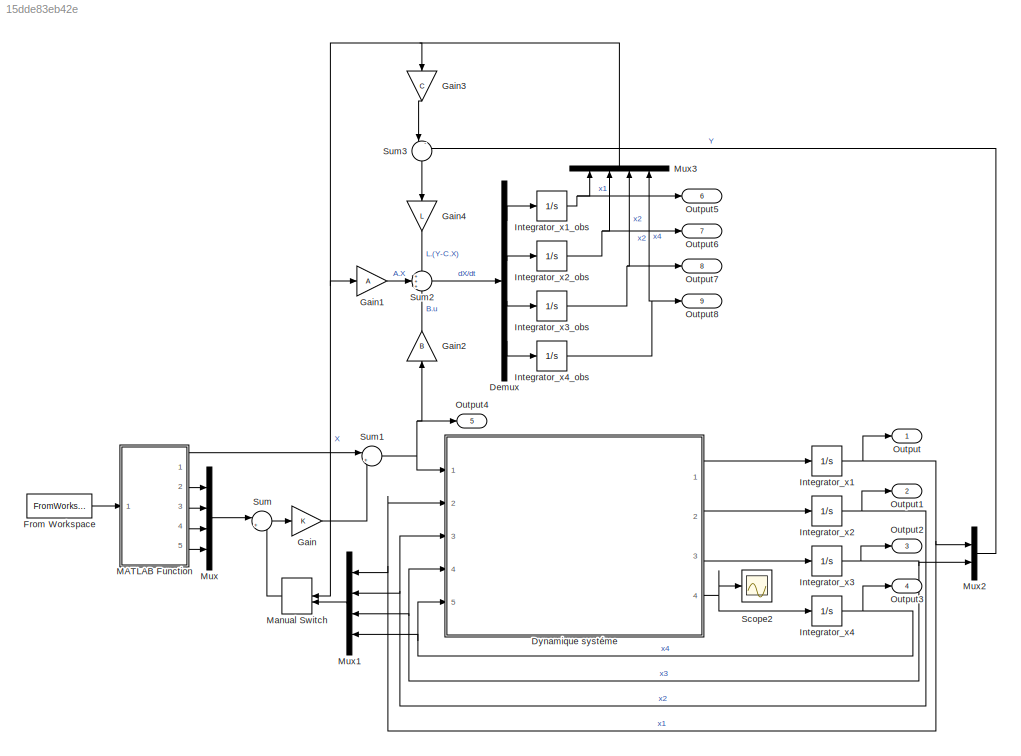
MODEL slx_15dde83eb42e
KIND model
CONFIG AbsTol = auto
CONFIG EnableMultiTasking = off
CONFIG FixedStep = auto
CONFIG MaxStep = auto
CONFIG MinStep = auto
CONFIG RelTol = 1e-3
CONFIG SampleTimeConstraint = Unconstrained
CONFIG SolverName = VariableStepAuto
CONFIG StartTime = 0.0
CONFIG StopTime = 10.0
BLOCK [Demux] Demux
  Ports = [1, 4]
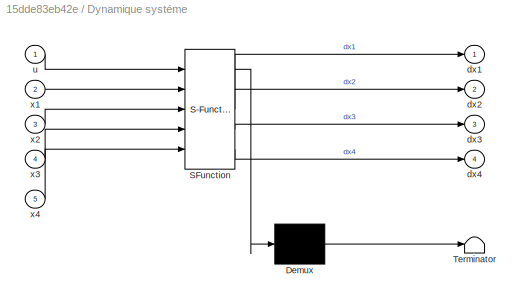
BLOCK [SubSystem] Dynamique systéme
  ErrorFcn = Stateflow.Translate.translate
  PermitHierarchicalResolution = ExplicitOnly
  Ports = [5, 4]
  RequestExecContextInheritance = off
  SFBlockType = MATLAB Function
  TreatAsAtomicUnit = on
BLOCK [Demux] Dynamique systéme/ Demux 
  Outputs = 1
  Ports = [1, 1]
BLOCK [S-Function] Dynamique systéme/ SFunction 
  EnableBusSupport = on
  FunctionName = sf_sfun
  PortCounts = [5 5]
  Ports = [5, 5]
  SFcnIsStateOwnerBlock = off
  SFunctionDeploymentMode = off
  Tag = Stateflow S-Function 2
BLOCK [Terminator] Dynamique systéme/ Terminator 
BLOCK [Outport] Dynamique systéme/dx1
BLOCK [Outport] Dynamique systéme/dx2
  Port = 2
BLOCK [Outport] Dynamique systéme/dx3
  Port = 3
BLOCK [Outport] Dynamique systéme/dx4
  Port = 4
BLOCK [Inport] Dynamique systéme/u
BLOCK [Inport] Dynamique systéme/x1
  Port = 2
BLOCK [Inport] Dynamique systéme/x2
  Port = 3
BLOCK [Inport] Dynamique systéme/x3
  Port = 4
BLOCK [Inport] Dynamique systéme/x4
  Port = 5
BLOCK [FromWorkspace] From Workspace
  OutDataTypeStr = double
  SampleTime = 0.01
  VariableName = Rref
BLOCK [Gain] Gain
  Gain = K
  Multiplication = Matrix(K*u)
BLOCK [Gain] Gain1
  Gain = A
  Multiplication = Matrix(K*u)
BLOCK [Gain] Gain2
  Gain = B
  Multiplication = Matrix(K*u)
  NameLocation = right
BLOCK [Gain] Gain3
  Gain = C
  Multiplication = Matrix(K*u)
  NameLocation = left
BLOCK [Gain] Gain4
  Gain = L
  Multiplication = Matrix(K*u)
  NameLocation = left
BLOCK [Integrator] Integrator_x1
  InitialCondition = 0.1
  Ports = [1, 1]
BLOCK [Integrator] Integrator_x1_obs
  Ports = [1, 1]
BLOCK [Integrator] Integrator_x2
  Ports = [1, 1]
BLOCK [Integrator] Integrator_x2_obs
  Ports = [1, 1]
BLOCK [Integrator] Integrator_x3
  Ports = [1, 1]
BLOCK [Integrator] Integrator_x3_obs
  Ports = [1, 1]
BLOCK [Integrator] Integrator_x4
  Ports = [1, 1]
BLOCK [Integrator] Integrator_x4_obs
  Ports = [1, 1]
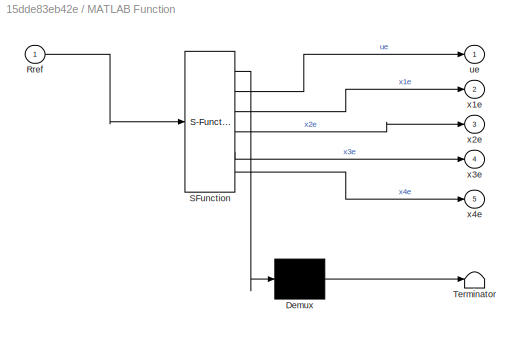
BLOCK [SubSystem] MATLAB Function
  ErrorFcn = Stateflow.Translate.translate
  PermitHierarchicalResolution = ExplicitOnly
  Ports = [1, 5]
  RequestExecContextInheritance = off
  SFBlockType = MATLAB Function
  TreatAsAtomicUnit = on
BLOCK [Demux] MATLAB Function/ Demux 
  Outputs = 1
  Ports = [1, 1]
BLOCK [S-Function] MATLAB Function/ SFunction 
  EnableBusSupport = on
  FunctionName = sf_sfun
  PortCounts = [1 6]
  Ports = [1, 6]
  SFcnIsStateOwnerBlock = off
  SFunctionDeploymentMode = off
  Tag = Stateflow S-Function 1
BLOCK [Terminator] MATLAB Function/ Terminator 
BLOCK [Inport] MATLAB Function/Rref
BLOCK [Outport] MATLAB Function/ue
BLOCK [Outport] MATLAB Function/x1e
  Port = 2
BLOCK [Outport] MATLAB Function/x2e
  Port = 3
BLOCK [Outport] MATLAB Function/x3e
  Port = 4
BLOCK [Outport] MATLAB Function/x4e
  Port = 5
BLOCK [ManualSwitch] Manual Switch
  CurrentSetting = 0
  NameLocation = top
BLOCK [Mux] Mux
  DisplayOption = bar
  Ports = [4, 1]
BLOCK [Mux] Mux1
  DisplayOption = bar
  NameLocation = top
  Ports = [4, 1]
BLOCK [Mux] Mux2
  DisplayOption = bar
  Inputs = 2
  Ports = [2, 1]
BLOCK [Mux] Mux3
  DisplayOption = bar
  NameLocation = right
  Ports = [4, 1]
BLOCK [Outport] Output
  IconDisplay = Signal name
BLOCK [Outport] Output1
  IconDisplay = Signal name
  Port = 2
BLOCK [Outport] Output2
  IconDisplay = Signal name
  Port = 3
BLOCK [Outport] Output3
  IconDisplay = Signal name
  Port = 4
BLOCK [Outport] Output4
  IconDisplay = Signal name
  Port = 5
  SignalName = U
BLOCK [Outport] Output5
  IconDisplay = Signal name
  Port = 6
  SignalName = x1_obs
BLOCK [Outport] Output6
  IconDisplay = Signal name
  Port = 7
  SignalName = x2_obs
BLOCK [Outport] Output7
  IconDisplay = Signal name
  Port = 8
  SignalName = x3_obs
BLOCK [Outport] Output8
  IconDisplay = Signal name
  Port = 9
  SignalName = x4_obs
BLOCK [Scope] Scope2
  Floating = off
  NumInputPorts = 1
  Ports = [1]
  ScopeSpecificationString = Simulink.scopes.TimeScopeBlockCfg('CurrentConfiguration', extmgr.ConfigurationSet(extmgr.Configuration('Core','General UI',true),extmgr.Configuration('Core','Source UI',true),extmgr.Configuration('Sources','WiredSimulink',true,'DataLoggingVariableName','ScopeData2'),extmgr.Configuration('Visuals','Time Domain',true,'SerializedDisplays',{struct('MinYLimReal','-34971641.0844','MaxYLimReal','51641224...<+1451ch>
BLOCK [Sum] Sum
  Inputs = |+-
  Ports = [2, 1]
BLOCK [Sum] Sum1
  Inputs = |++
  Ports = [2, 1]
BLOCK [Sum] Sum2
  Inputs = +++
  Ports = [3, 1]
BLOCK [Sum] Sum3
  Inputs = |-+
  NameLocation = left
  Ports = [2, 1]
LINE Demux:1 -> Integrator_x1_obs:1
LINE Demux:2 -> Integrator_x2_obs:1
LINE Demux:3 -> Integrator_x3_obs:1
LINE Demux:4 -> Integrator_x4_obs:1
LINE Dynamique systéme:1 -> Integrator_x1:1
LINE Dynamique systéme:2 -> Integrator_x2:1
LINE Dynamique systéme:3 -> Integrator_x3:1
NET Dynamique systéme:4 -> Integrator_x4:1, Scope2:1
LINE From Workspace:1 -> MATLAB Function:1
LINE Gain1:1 -> Sum2:2
LINE Gain2:1 -> Sum2:3
LINE Gain3:1 -> Sum3:1
LINE Gain4:1 -> Sum2:1
LINE Gain:1 -> Sum1:2
NET Integrator_x1:1 -> Dynamique systéme:2, Mux1:1, Mux2:1, Output:1
NET Integrator_x1_obs:1 -> Mux3:1, Output5:1
NET Integrator_x2:1 -> Dynamique systéme:3, Mux1:2, Output1:1
NET Integrator_x2_obs:1 -> Mux3:2, Output6:1
NET Integrator_x3:1 -> Dynamique systéme:4, Mux1:3, Mux2:2, Output2:1
NET Integrator_x3_obs:1 -> Mux3:3, Output7:1
NET Integrator_x4:1 -> Dynamique systéme:5, Mux1:4, Output3:1
NET Integrator_x4_obs:1 -> Mux3:4, Output8:1
LINE MATLAB Function:1 -> Sum1:1
LINE MATLAB Function:2 -> Mux:1
LINE MATLAB Function:3 -> Mux:2
LINE MATLAB Function:4 -> Mux:3
LINE MATLAB Function:5 -> Mux:4
LINE Manual Switch:1 -> Sum:2
LINE Mux1:1 -> Manual Switch:2
LINE Mux2:1 -> Sum3:2
NET Mux3:1 -> Gain1:1, Gain3:1, Manual Switch:1
LINE Mux:1 -> Sum:1
NET Sum1:1 -> Dynamique systéme:1, Gain2:1, Output4:1
LINE Sum2:1 -> Demux:1
LINE Sum3:1 -> Gain4:1
LINE Sum:1 -> Gain:1
note: NET lines group one-source signal fan-out (src -> all destinations, sorted); 1:1 wires keep LINE
CHART MATLAB Function states=1 transitions=1
  STATE_LABEL 'eML_blk_kernel()'
  STATE_LABEL 'SCRIPT:\nfunction [ue,x1e,x2e,x3e,x4e] = fcn(Rref)\n    % declaration constants\n    m = 0.6; % kg\n    g = 9.81; % m/s^2\n\n    x1e = Rref;\n    x2e = 0;\n    x3e = 0;\n    x4e = 0;\n    ue = m*g*x1e;\n'
CHART Dynamique systéme states=1 transitions=1
  STATE_LABEL 'eML_blk_kernel()'
  STATE_LABEL 'SCRIPT:\nfunction [dx1,dx2,dx3,dx4] = fcn(u,x1,x2,x3,x4)\n    % declaration constants\n    J = 0.02; % kg.m^2\n    m = 0.6; % kg\n    sigma = 0.8; % adimentional\n    g = 9.81; % m/s^2\n    \n    % dynamique\n    dx1 = x2;\n    dx2 = (x1*x4*x4-g*sin(x3))/(1+sigma);\n    dx3 = x4;\n    dx4 = (u-m*g*x1*cos(x3)-2*m*x1*x2*x4)/(J+m*x1*x1);\n'
CHART  states=0 transitions=0
CHART  states=0 transitions=0
